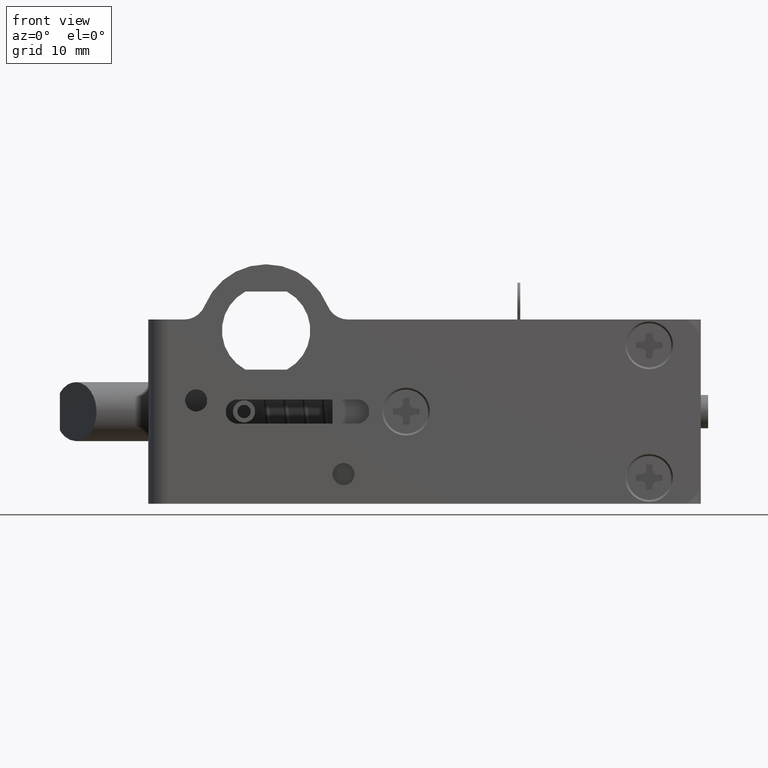
[diagram: clean part render]
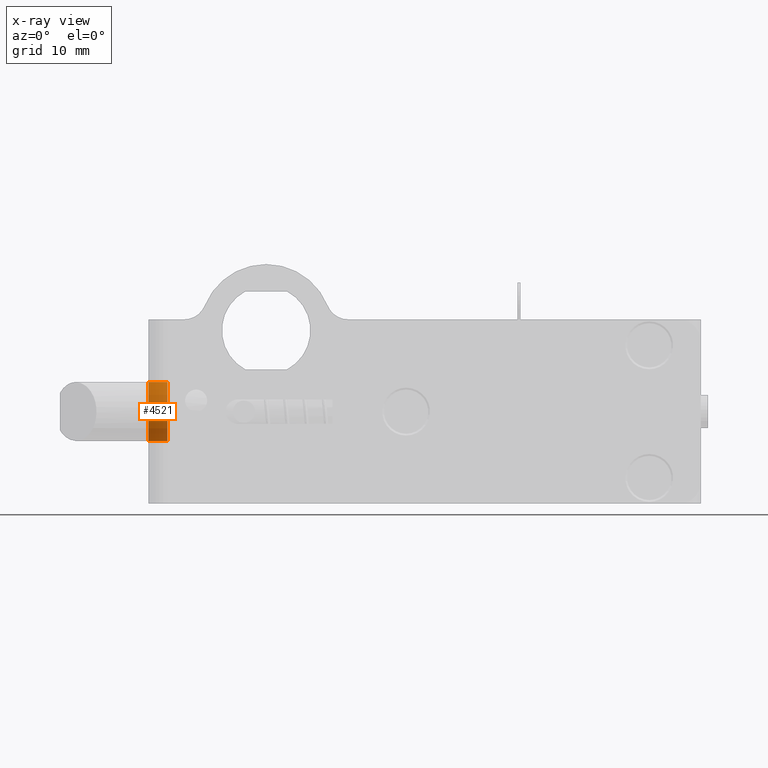
[diagram: x-ray — body ghosted, one internal face saturated and labeled with its STEP entity id]
A machine part, front view, then the same camera in x-ray: the body is ghosted and one INTERNAL B-rep face — a face not visible from any outside direction — is saturated and labeled: STEP entity #4521.
In plain terms, the highlighted cylindrical surface (edge-blend (fillet) strip) has radius 4 mm, axis along (-1, 0, 0).
Its self-contained STEP definition (entity closure, byte-faithful):
#15 = AXIS2_PLACEMENT_3D ( 'NONE', #2642, #6903, #3260 ) ;
#23 = ORIENTED_EDGE ( 'NONE', *, *, #1731, .T. ) ;
#67 = CARTESIAN_POINT ( 'NONE',  ( -16.00000000000000000, 17.60000000000000100, -6.999999999999999100 ) ) ;
#323 = VERTEX_POINT ( 'NONE', #67 ) ;
#515 = LINE ( 'NONE', #6117, #6622 ) ;
#1141 = CARTESIAN_POINT ( 'NONE',  ( -13.39999999999986000, 17.60000000000000100, -11.00000000000000000 ) ) ;
#1270 = CIRCLE ( 'NONE', #5221, 4.000000000000000000 ) ;
#1362 = CARTESIAN_POINT ( 'NONE',  ( -13.39999999999986000, 17.60000000000000100, -6.999999999999999100 ) ) ;
#1677 = CARTESIAN_POINT ( 'NONE',  ( -16.00000000000000000, 17.60000000000000100, -15.00000000000000000 ) ) ;
#1716 = AXIS2_PLACEMENT_3D ( 'NONE', #3918, #2111, #2712 ) ;
#1731 = EDGE_CURVE ( 'NONE', #2150, #6478, #3941, .T. ) ;
#1770 = DIRECTION ( 'NONE',  ( 0.0000000000000000000, 0.0000000000000000000, -1.000000000000000000 ) ) ;
#1868 = DIRECTION ( 'NONE',  ( -1.000000000000000000, 0.0000000000000000000, 0.0000000000000000000 ) ) ;
#2111 = DIRECTION ( 'NONE',  ( -1.000000000000000000, 0.0000000000000000000, 0.0000000000000000000 ) ) ;
#2150 = VERTEX_POINT ( 'NONE', #7843 ) ;
#2316 = VECTOR ( 'NONE', #3141, 1000.000000000000000 ) ;
#2642 = CARTESIAN_POINT ( 'NONE',  ( -16.00000000000000000, 17.60000000000000100, -11.00000000000000000 ) ) ;
#2712 = DIRECTION ( 'NONE',  ( 0.0000000000000000000, 0.0000000000000000000, 1.000000000000000000 ) ) ;
#2765 = EDGE_CURVE ( 'NONE', #2150, #7752, #1270, .T. ) ;
#3141 = DIRECTION ( 'NONE',  ( -1.000000000000000000, 0.0000000000000000000, 0.0000000000000000000 ) ) ;
#3260 = DIRECTION ( 'NONE',  ( 0.0000000000000000000, 0.0000000000000000000, -1.000000000000000000 ) ) ;
#3766 = CARTESIAN_POINT ( 'NONE',  ( 984.0000000000000000, 17.60000000000000100, -15.00000000000000000 ) ) ;
#3918 = CARTESIAN_POINT ( 'NONE',  ( 984.0000000000000000, 17.60000000000000100, -11.00000000000000000 ) ) ;
#3941 = LINE ( 'NONE', #3766, #2316 ) ;
#4399 = FACE_OUTER_BOUND ( 'NONE', #4702, .T. ) ;
#4521 = ADVANCED_FACE ( 'NONE', ( #4399 ), #7231, .F. ) ;
#4702 = EDGE_LOOP ( 'NONE', ( #6776, #23, #5062, #5483 ) ) ;
#5062 = ORIENTED_EDGE ( 'NONE', *, *, #5249, .T. ) ;
#5221 = AXIS2_PLACEMENT_3D ( 'NONE', #1141, #5420, #1770 ) ;
#5249 = EDGE_CURVE ( 'NONE', #6478, #323, #6927, .T. ) ;
#5420 = DIRECTION ( 'NONE',  ( -1.000000000000000000, -0.0000000000000000000, -0.0000000000000000000 ) ) ;
#5483 = ORIENTED_EDGE ( 'NONE', *, *, #7105, .F. ) ;
#6117 = CARTESIAN_POINT ( 'NONE',  ( 984.0000000000000000, 17.60000000000000100, -6.999999999999999100 ) ) ;
#6478 = VERTEX_POINT ( 'NONE', #1677 ) ;
#6622 = VECTOR ( 'NONE', #1868, 1000.000000000000000 ) ;
#6776 = ORIENTED_EDGE ( 'NONE', *, *, #2765, .F. ) ;
#6903 = DIRECTION ( 'NONE',  ( -1.000000000000000000, -0.0000000000000000000, -0.0000000000000000000 ) ) ;
#6927 = CIRCLE ( 'NONE', #15, 4.000000000000000000 ) ;
#7105 = EDGE_CURVE ( 'NONE', #7752, #323, #515, .T. ) ;
#7231 = CYLINDRICAL_SURFACE ( 'NONE', #1716, 4.000000000000000000 ) ;
#7752 = VERTEX_POINT ( 'NONE', #1362 ) ;
#7843 = CARTESIAN_POINT ( 'NONE',  ( -13.39999999999986000, 17.60000000000000100, -15.00000000000000000 ) ) ;